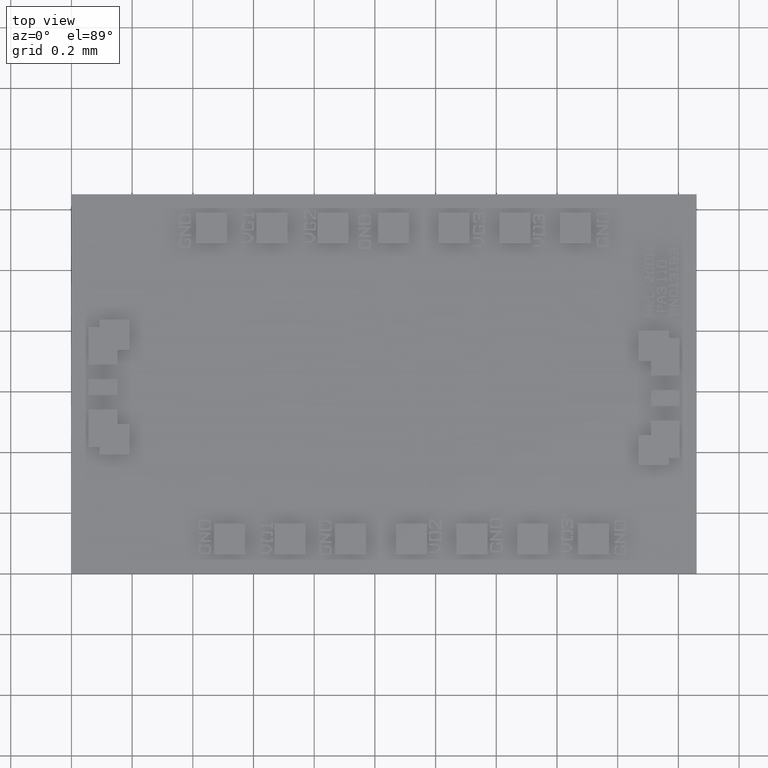
[diagram: clean part render]
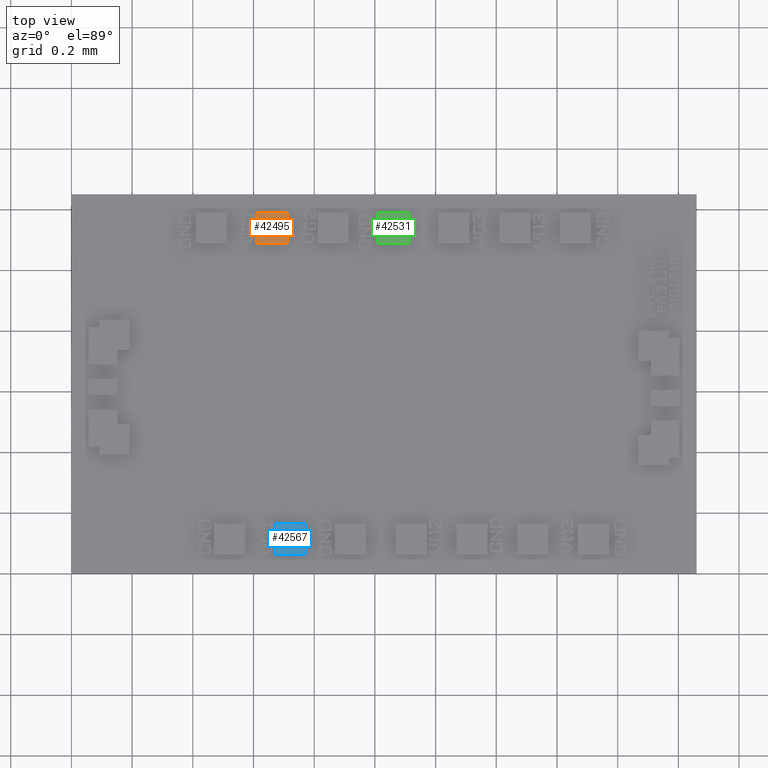
[diagram: same view with three faces highlighted in distinct colors, each labeled with its STEP entity id]
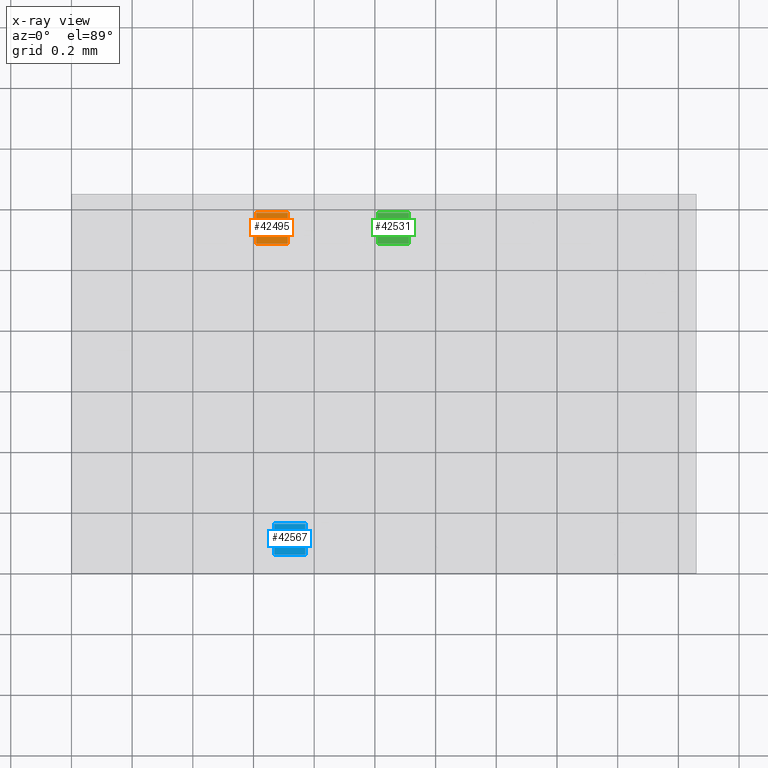
[diagram: x-ray of the same camera — body ghosted, the three highlighted faces saturated]
A machine part, top view with three faces highlighted in distinct colors.
The next image is the same camera in x-ray (body ghosted, the three faces saturated) — at least one of them is partly hidden behind the body in this view.
Their STEP definitions:

[orange] entity #42495 — the highlighted planar face has unit normal (0, 0, 1).
#2321=CARTESIAN_POINT('',(0.028031496062992,0.046811023622047,0.002047244094488));
#2322=VERTEX_POINT('',#2321);
#2329=CARTESIAN_POINT('',(0.028031496062992,0.042795275590551,0.002047244094488));
#2330=VERTEX_POINT('',#2329);
#2331=CARTESIAN_POINT('',(0.028031496062992,0.042795275590551,0.002047244094488));
#2332=DIRECTION('',(0.0,1.0,0.0));
#2333=VECTOR('',#2332,0.004015748031496);
#2334=LINE('',#2331,#2333);
#2335=EDGE_CURVE('',#2330,#2322,#2334,.T.);
#2359=CARTESIAN_POINT('',(0.024015748031496,0.046811023622047,0.002047244094488));
#2360=VERTEX_POINT('',#2359);
#2367=CARTESIAN_POINT('',(0.028031496062992,0.046811023622047,0.002047244094488));
#2368=DIRECTION('',(-1.0,0.0,0.0));
#2369=VECTOR('',#2368,0.004015748031496);
#2370=LINE('',#2367,#2369);
#2371=EDGE_CURVE('',#2322,#2360,#2370,.T.);
#2390=CARTESIAN_POINT('',(0.024015748031496,0.042795275590551,0.002047244094488));
#2391=VERTEX_POINT('',#2390);
#2398=CARTESIAN_POINT('',(0.024015748031496,0.046811023622047,0.002047244094488));
#2399=DIRECTION('',(0.0,-1.0,0.0));
#2400=VECTOR('',#2399,0.004015748031496);
#2401=LINE('',#2398,#2400);
#2402=EDGE_CURVE('',#2360,#2391,#2401,.T.);
#2420=CARTESIAN_POINT('',(0.024015748031496,0.042795275590551,0.002047244094488));
#2421=DIRECTION('',(1.0,0.0,0.0));
#2422=VECTOR('',#2421,0.004015748031496);
#2423=LINE('',#2420,#2422);
#2424=EDGE_CURVE('',#2391,#2330,#2423,.T.);
#42484=CARTESIAN_POINT('',(0.040551181102362,0.024606299212598,0.002047244094488));
#42485=DIRECTION('',(0.0,0.0,1.0));
#42486=DIRECTION('',(1.0,0.0,0.0));
#42487=AXIS2_PLACEMENT_3D('',#42484,#42485,#42486);
#42488=PLANE('',#42487);
#42489=ORIENTED_EDGE('',*,*,#2335,.T.);
#42490=ORIENTED_EDGE('',*,*,#2371,.T.);
#42491=ORIENTED_EDGE('',*,*,#2402,.T.);
#42492=ORIENTED_EDGE('',*,*,#2424,.T.);
#42493=EDGE_LOOP('',(#42489,#42490,#42491,#42492));
#42494=FACE_OUTER_BOUND('',#42493,.T.);
#42495=ADVANCED_FACE('',(#42494),#42488,.T.);

[blue] entity #42567 — the highlighted planar face has unit normal (0, 0, 1).
#1577=CARTESIAN_POINT('',(0.030354330708661,0.006437007874016,0.002047244094488));
#1578=VERTEX_POINT('',#1577);
#1585=CARTESIAN_POINT('',(0.030354330708661,0.002421259842520,0.002047244094488));
#1586=VERTEX_POINT('',#1585);
#1587=CARTESIAN_POINT('',(0.030354330708661,0.002421259842520,0.002047244094488));
#1588=DIRECTION('',(0.0,1.0,0.0));
#1589=VECTOR('',#1588,0.004015748031496);
#1590=LINE('',#1587,#1589);
#1591=EDGE_CURVE('',#1586,#1578,#1590,.T.);
#1615=CARTESIAN_POINT('',(0.026338582677165,0.006437007874016,0.002047244094488));
#1616=VERTEX_POINT('',#1615);
#1623=CARTESIAN_POINT('',(0.030354330708661,0.006437007874016,0.002047244094488));
#1624=DIRECTION('',(-1.0,0.0,0.0));
#1625=VECTOR('',#1624,0.004015748031496);
#1626=LINE('',#1623,#1625);
#1627=EDGE_CURVE('',#1578,#1616,#1626,.T.);
#1646=CARTESIAN_POINT('',(0.026338582677165,0.002421259842520,0.002047244094488));
#1647=VERTEX_POINT('',#1646);
#1654=CARTESIAN_POINT('',(0.026338582677165,0.006437007874016,0.002047244094488));
#1655=DIRECTION('',(0.0,-1.0,0.0));
#1656=VECTOR('',#1655,0.004015748031496);
#1657=LINE('',#1654,#1656);
#1658=EDGE_CURVE('',#1616,#1647,#1657,.T.);
#1676=CARTESIAN_POINT('',(0.026338582677165,0.002421259842520,0.002047244094488));
#1677=DIRECTION('',(1.0,0.0,0.0));
#1678=VECTOR('',#1677,0.004015748031496);
#1679=LINE('',#1676,#1678);
#1680=EDGE_CURVE('',#1647,#1586,#1679,.T.);
#42556=CARTESIAN_POINT('',(0.040551181102362,0.024606299212598,0.002047244094488));
#42557=DIRECTION('',(0.0,0.0,1.0));
#42558=DIRECTION('',(1.0,0.0,0.0));
#42559=AXIS2_PLACEMENT_3D('',#42556,#42557,#42558);
#42560=PLANE('',#42559);
#42561=ORIENTED_EDGE('',*,*,#1591,.T.);
#42562=ORIENTED_EDGE('',*,*,#1627,.T.);
#42563=ORIENTED_EDGE('',*,*,#1658,.T.);
#42564=ORIENTED_EDGE('',*,*,#1680,.T.);
#42565=EDGE_LOOP('',(#42561,#42562,#42563,#42564));
#42566=FACE_OUTER_BOUND('',#42565,.T.);
#42567=ADVANCED_FACE('',(#42566),#42560,.T.);

[green] entity #42531 — the highlighted planar face has unit normal (0, 0, 1).
#1949=CARTESIAN_POINT('',(0.043779527559055,0.046811023622047,0.002047244094488));
#1950=VERTEX_POINT('',#1949);
#1957=CARTESIAN_POINT('',(0.043779527559055,0.042795275590551,0.002047244094488));
#1958=VERTEX_POINT('',#1957);
#1959=CARTESIAN_POINT('',(0.043779527559055,0.042795275590551,0.002047244094488));
#1960=DIRECTION('',(0.0,1.0,0.0));
#1961=VECTOR('',#1960,0.004015748031496);
#1962=LINE('',#1959,#1961);
#1963=EDGE_CURVE('',#1958,#1950,#1962,.T.);
#1987=CARTESIAN_POINT('',(0.039763779527559,0.046811023622047,0.002047244094488));
#1988=VERTEX_POINT('',#1987);
#1995=CARTESIAN_POINT('',(0.043779527559055,0.046811023622047,0.002047244094488));
#1996=DIRECTION('',(-1.0,0.0,0.0));
#1997=VECTOR('',#1996,0.004015748031496);
#1998=LINE('',#1995,#1997);
#1999=EDGE_CURVE('',#1950,#1988,#1998,.T.);
#2018=CARTESIAN_POINT('',(0.039763779527559,0.042795275590551,0.002047244094488));
#2019=VERTEX_POINT('',#2018);
#2026=CARTESIAN_POINT('',(0.039763779527559,0.046811023622047,0.002047244094488));
#2027=DIRECTION('',(0.0,-1.0,0.0));
#2028=VECTOR('',#2027,0.004015748031496);
#2029=LINE('',#2026,#2028);
#2030=EDGE_CURVE('',#1988,#2019,#2029,.T.);
#2048=CARTESIAN_POINT('',(0.039763779527559,0.042795275590551,0.002047244094488));
#2049=DIRECTION('',(1.0,0.0,0.0));
#2050=VECTOR('',#2049,0.004015748031496);
#2051=LINE('',#2048,#2050);
#2052=EDGE_CURVE('',#2019,#1958,#2051,.T.);
#42520=CARTESIAN_POINT('',(0.040551181102362,0.024606299212598,0.002047244094488));
#42521=DIRECTION('',(0.0,0.0,1.0));
#42522=DIRECTION('',(1.0,0.0,0.0));
#42523=AXIS2_PLACEMENT_3D('',#42520,#42521,#42522);
#42524=PLANE('',#42523);
#42525=ORIENTED_EDGE('',*,*,#1963,.T.);
#42526=ORIENTED_EDGE('',*,*,#1999,.T.);
#42527=ORIENTED_EDGE('',*,*,#2030,.T.);
#42528=ORIENTED_EDGE('',*,*,#2052,.T.);
#42529=EDGE_LOOP('',(#42525,#42526,#42527,#42528));
#42530=FACE_OUTER_BOUND('',#42529,.T.);
#42531=ADVANCED_FACE('',(#42530),#42524,.T.);